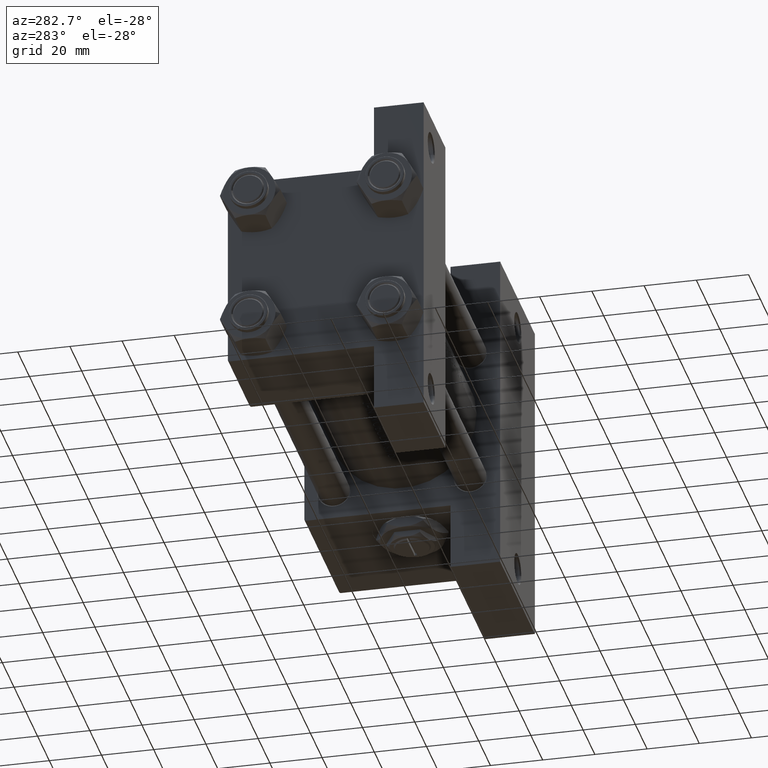
[diagram: clean part render]
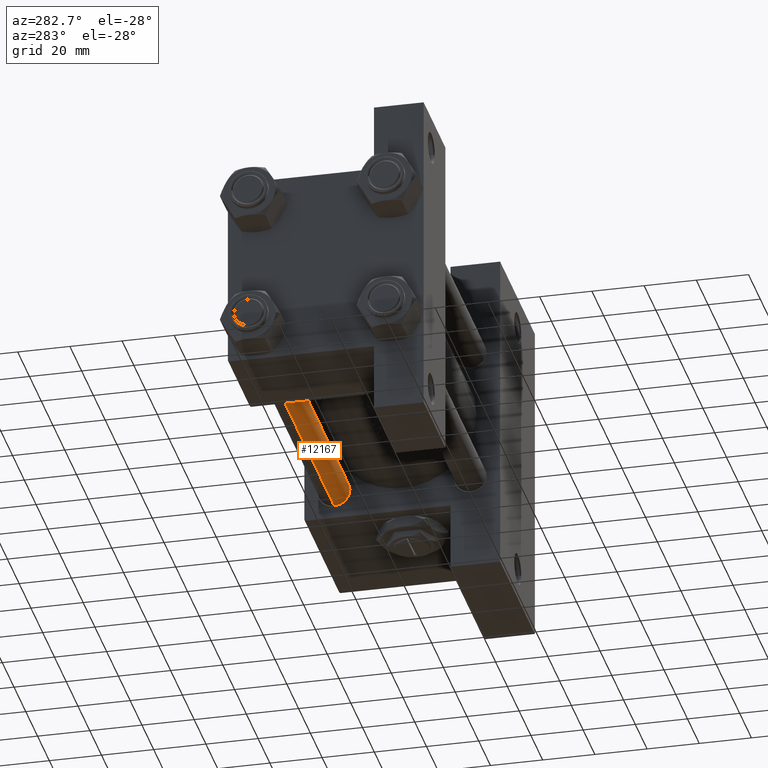
[diagram: same view with one face highlighted and labeled with its STEP entity id]
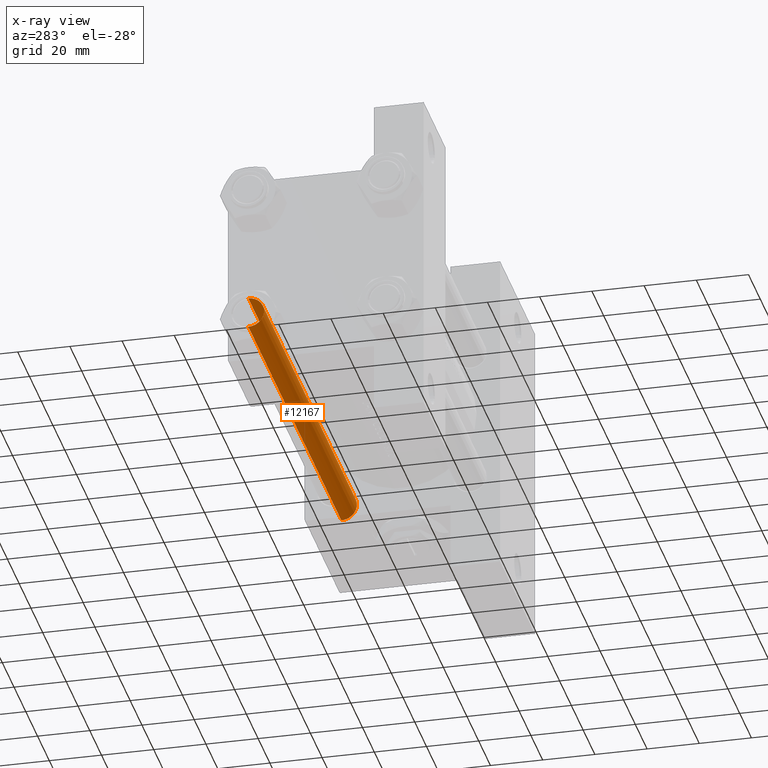
[diagram: x-ray of the same camera — body ghosted, the highlighted face saturated]
A machine part, auxiliary view. The second image highlights one B-rep face of the part: STEP entity #12167.
The next image is the same camera in x-ray: the body ghosted, the highlighted face saturated — about 0% of this face is hidden behind the body in this view.
In plain terms, the highlighted cylindrical surface (edge-blend (fillet) strip) has radius 6 mm, axis along (1, -0, -0).
Its self-contained STEP definition (entity closure, byte-faithful):
#853 = DIRECTION ( 'NONE',  ( -0.000000000000000000, -0.000000000000000000, -1.000000000000000000 ) ) ;
#901 = AXIS2_PLACEMENT_3D ( 'NONE', #9225, #36565, #40310 ) ;
#983 = DIRECTION ( 'NONE',  ( -0.000000000000000000, -0.000000000000000000, 1.000000000000000000 ) ) ;
#4434 = ORIENTED_EDGE ( 'NONE', *, *, #17791, .T. ) ;
#4819 = AXIS2_PLACEMENT_3D ( 'NONE', #5442, #983, #17124 ) ;
#5013 = ORIENTED_EDGE ( 'NONE', *, *, #22861, .T. ) ;
#5442 = CARTESIAN_POINT ( 'NONE',  ( 0.000000000000000000, 0.000000000000000000, 0.5000000000001669775 ) ) ;
#5599 = CIRCLE ( 'NONE', #4819, 6.000000000000000888 ) ;
#7463 = ORIENTED_EDGE ( 'NONE', *, *, #8358, .F. ) ;
#7522 = CARTESIAN_POINT ( 'NONE',  ( 6.000000000000000888, 7.347880794884119736E-16, 0.5000000000001669775 ) ) ;
#8358 = EDGE_CURVE ( 'NONE', #17177, #36501, #15290, .T. ) ;
#9072 = VERTEX_POINT ( 'NONE', #26127 ) ;
#9225 = CARTESIAN_POINT ( 'NONE',  ( 0.000000000000000000, 0.000000000000000000, 158.5000000000000568 ) ) ;
#9410 = AXIS2_PLACEMENT_3D ( 'NONE', #37271, #14855, #29312 ) ;
#12167 = ADVANCED_FACE ( 'NONE', ( #40775 ), #44516, .T. ) ;
#13181 = CARTESIAN_POINT ( 'NONE',  ( -6.000000000000000888, 0.000000000000000000, 158.5000000000000568 ) ) ;
#14740 = CARTESIAN_POINT ( 'NONE',  ( -6.000000000000000888, 0.000000000000000000, 159.0000000000000000 ) ) ;
#14855 = DIRECTION ( 'NONE',  ( -0.000000000000000000, -0.000000000000000000, -1.000000000000000000 ) ) ;
#15238 = DIRECTION ( 'NONE',  ( -0.000000000000000000, -0.000000000000000000, -1.000000000000000000 ) ) ;
#15290 = LINE ( 'NONE', #30466, #41100 ) ;
#17124 = DIRECTION ( 'NONE',  ( 1.000000000000000000, 0.000000000000000000, 0.000000000000000000 ) ) ;
#17177 = VERTEX_POINT ( 'NONE', #42200 ) ;
#17791 = EDGE_CURVE ( 'NONE', #9072, #36501, #5599, .T. ) ;
#19950 = EDGE_LOOP ( 'NONE', ( #7463, #5013, #30579, #4434 ) ) ;
#22861 = EDGE_CURVE ( 'NONE', #17177, #40684, #31094, .T. ) ;
#26127 = CARTESIAN_POINT ( 'NONE',  ( -6.000000000000000888, 0.000000000000000000, 0.5000000000001669775 ) ) ;
#29312 = DIRECTION ( 'NONE',  ( -1.000000000000000000, 0.000000000000000000, 0.000000000000000000 ) ) ;
#30466 = CARTESIAN_POINT ( 'NONE',  ( 6.000000000000000888, 7.347880794884119736E-16, 159.0000000000000000 ) ) ;
#30579 = ORIENTED_EDGE ( 'NONE', *, *, #46348, .T. ) ;
#31094 = CIRCLE ( 'NONE', #901, 6.000000000000000888 ) ;
#31102 = VECTOR ( 'NONE', #15238, 1000.000000000000000 ) ;
#36501 = VERTEX_POINT ( 'NONE', #7522 ) ;
#36565 = DIRECTION ( 'NONE',  ( 0.000000000000000000, 0.000000000000000000, -1.000000000000000000 ) ) ;
#37271 = CARTESIAN_POINT ( 'NONE',  ( 0.000000000000000000, 0.000000000000000000, 159.0000000000000000 ) ) ;
#40310 = DIRECTION ( 'NONE',  ( 1.000000000000000000, 0.000000000000000000, 0.000000000000000000 ) ) ;
#40684 = VERTEX_POINT ( 'NONE', #13181 ) ;
#40775 = FACE_OUTER_BOUND ( 'NONE', #19950, .T. ) ;
#41100 = VECTOR ( 'NONE', #853, 1000.000000000000000 ) ;
#41630 = LINE ( 'NONE', #14740, #31102 ) ;
#42200 = CARTESIAN_POINT ( 'NONE',  ( 6.000000000000000888, 7.347880794884119736E-16, 158.5000000000000568 ) ) ;
#44516 = CYLINDRICAL_SURFACE ( 'NONE', #9410, 6.000000000000000888 ) ;
#46348 = EDGE_CURVE ( 'NONE', #40684, #9072, #41630, .T. ) ;